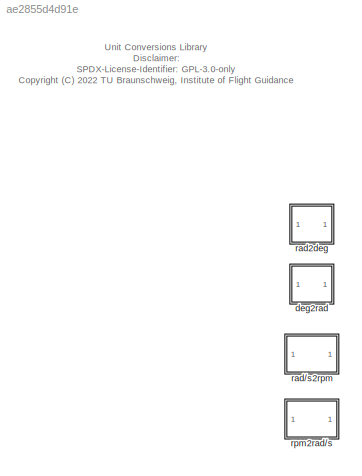
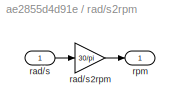
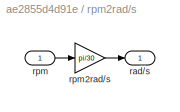
MODEL slx_ae2855d4d91e
KIND library
CONFIG AbsTol = auto
CONFIG EnableMultiTasking = off
CONFIG FixedStep = auto
CONFIG MaxStep = auto
CONFIG MinStep = auto
CONFIG RelTol = 1e-3
CONFIG SampleTimeConstraint = Unconstrained
CONFIG Solver = VariableStepAuto
CONFIG SolverName = VariableStepAuto
CONFIG StartTime = 0.0
CONFIG StopTime = 10.0
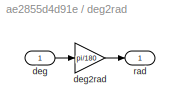
BLOCK [SubSystem] deg2rad
  Ports = [1, 1]
  RequestExecContextInheritance = off
BLOCK [Inport] deg2rad/deg
  IconDisplay = Port number
BLOCK [Gain] deg2rad/deg2rad
  Gain = pi/180
  OutDataTypeStr = Inherit: Inherit via internal rule
  ParamDataTypeStr = Inherit: Inherit via internal rule
  SaturateOnIntegerOverflow = off
BLOCK [Outport] deg2rad/rad
  IconDisplay = Port number
BLOCK [SubSystem] rad//s2rpm
  Ports = [1, 1]
  RequestExecContextInheritance = off
BLOCK [Inport] rad//s2rpm/rad//s
  IconDisplay = Port number
BLOCK [Gain] rad//s2rpm/rad//s2rpm
  Gain = 30/pi
  OutDataTypeStr = Inherit: Inherit via internal rule
  ParamDataTypeStr = Inherit: Inherit via internal rule
  SaturateOnIntegerOverflow = off
BLOCK [Outport] rad//s2rpm/rpm
  IconDisplay = Port number
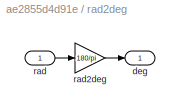
BLOCK [SubSystem] rad2deg
  Ports = [1, 1]
  RequestExecContextInheritance = off
BLOCK [Outport] rad2deg/deg
  IconDisplay = Port number
BLOCK [Inport] rad2deg/rad
  IconDisplay = Port number
BLOCK [Gain] rad2deg/rad2deg
  Gain = 180/pi
  OutDataTypeStr = Inherit: Inherit via internal rule
  ParamDataTypeStr = Inherit: Inherit via internal rule
  SaturateOnIntegerOverflow = off
BLOCK [SubSystem] rpm2rad//s
  Ports = [1, 1]
  RequestExecContextInheritance = off
BLOCK [Outport] rpm2rad//s/rad//s
  IconDisplay = Port number
BLOCK [Inport] rpm2rad//s/rpm
  IconDisplay = Port number
BLOCK [Gain] rpm2rad//s/rpm2rad//s
  Gain = pi/30
  OutDataTypeStr = Inherit: Inherit via internal rule
  ParamDataTypeStr = Inherit: Inherit via internal rule
  SaturateOnIntegerOverflow = off
ANNOTATION (root): Unit Conversions Library Disclaimer: SPDX-License-Identifier: GPL-3.0-only <copyright redacted>
LINE deg2rad/deg2rad:1 -> deg2rad/rad:1
LINE deg2rad/deg:1 -> deg2rad/deg2rad:1
LINE rad//s2rpm/rad//s2rpm:1 -> rad//s2rpm/rpm:1
LINE rad//s2rpm/rad//s:1 -> rad//s2rpm/rad//s2rpm:1
LINE rad2deg/rad2deg:1 -> rad2deg/deg:1
LINE rad2deg/rad:1 -> rad2deg/rad2deg:1
LINE rpm2rad//s/rpm2rad//s:1 -> rpm2rad//s/rad//s:1
LINE rpm2rad//s/rpm:1 -> rpm2rad//s/rpm2rad//s:1
